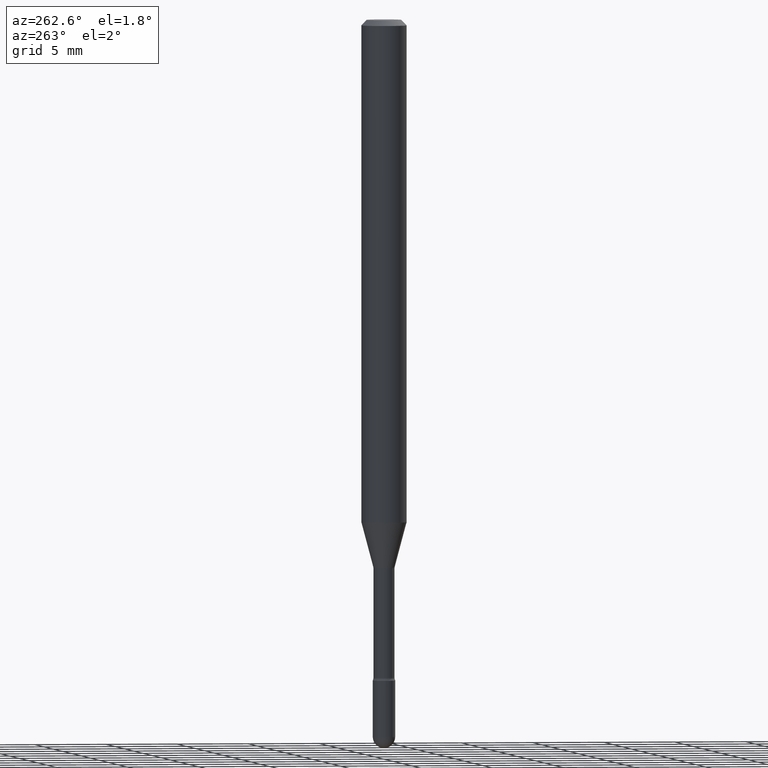
[diagram: clean part render]
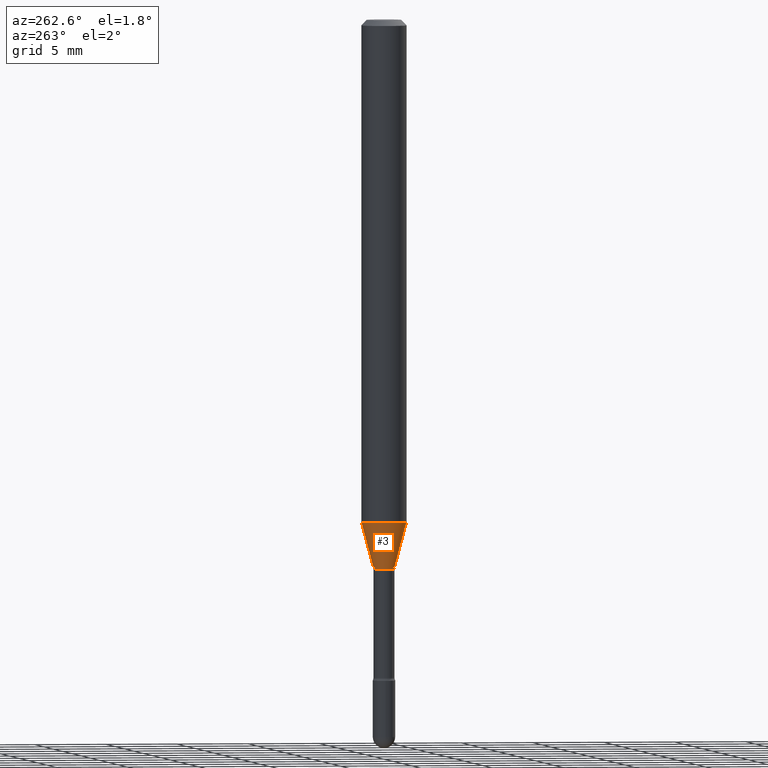
[diagram: same view with one face highlighted and labeled with its STEP entity id]
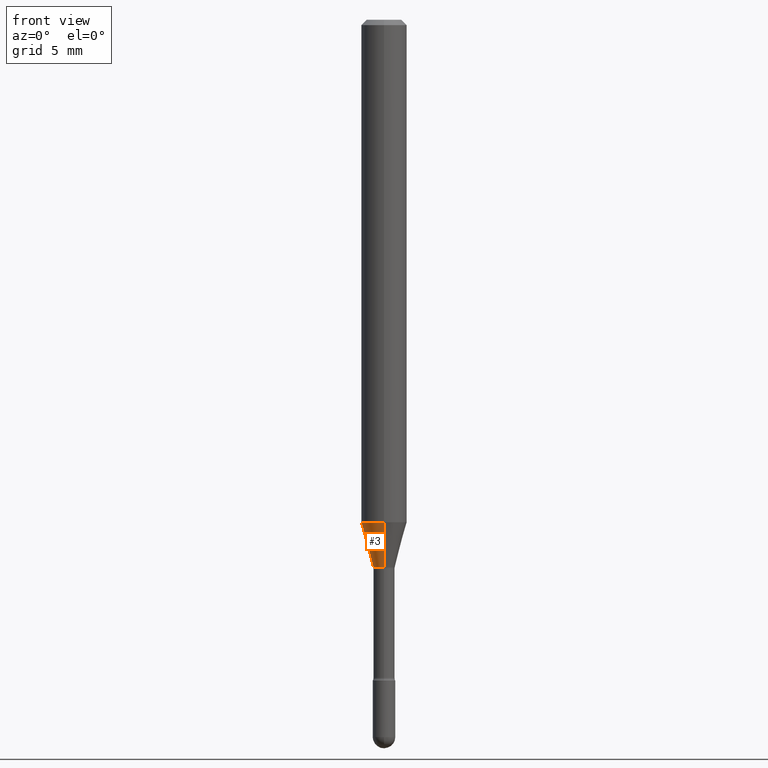
[diagram: same view with one face highlighted and labeled with its STEP entity id]
A machine part, auxiliary view. The second image highlights one B-rep face of the part: STEP entity #3.
A second angle (front view) of the same face is appended — the face is thin or edge-on in the first view.
In plain terms, the highlighted conical surface has half-angle 15 deg.
Its self-contained STEP definition (entity closure, byte-faithful):
#3 = ADVANCED_FACE ( 'NONE', ( #396 ), #367, .T. ) ;
#9 = CARTESIAN_POINT ( 'NONE',  ( 3.673298962196712735E-29, -5.244558577962036648E-15, -1.502092501787273271 ) ) ;
#25 = CARTESIAN_POINT ( 'NONE',  ( 2.107548809652055165E-16, 0.02966111260565873833, -1.502092501787273271 ) ) ;
#74 = LINE ( 'NONE', #196, #279 ) ;
#77 = AXIS2_PLACEMENT_3D ( 'NONE', #454, #116, #505 ) ;
#85 = EDGE_CURVE ( 'NONE', #366, #150, #253, .T. ) ;
#116 = DIRECTION ( 'NONE',  ( -2.445454562768948999E-29, 3.491501736225811078E-15, 1.000000000000000000 ) ) ;
#118 = DIRECTION ( 'NONE',  ( 1.839019923739598738E-15, 0.2588190451025247363, 0.9659258262890673130 ) ) ;
#137 = EDGE_LOOP ( 'NONE', ( #276, #407, #194, #186 ) ) ;
#150 = VERTEX_POINT ( 'NONE', #237 ) ;
#156 = EDGE_CURVE ( 'NONE', #397, #366, #413, .T. ) ;
#158 = CIRCLE ( 'NONE', #77, 0.02966111260566398414 ) ;
#161 = AXIS2_PLACEMENT_3D ( 'NONE', #9, #350, #529 ) ;
#164 = CARTESIAN_POINT ( 'NONE',  ( 3.373592863864740573E-29, -4.816652707775393500E-15, -1.379536105567578330 ) ) ;
#168 = EDGE_CURVE ( 'NONE', #453, #150, #74, .T. ) ;
#174 = CARTESIAN_POINT ( 'NONE',  ( 4.440892098500961428E-16, 0.06249999999999514971, -1.379536105567578552 ) ) ;
#180 = CARTESIAN_POINT ( 'NONE',  ( -2.071224423039644956E-16, -0.02966111260566922994, -1.502092501787273271 ) ) ;
#186 = ORIENTED_EDGE ( 'NONE', *, *, #85, .F. ) ;
#194 = ORIENTED_EDGE ( 'NONE', *, *, #168, .T. ) ;
#196 = CARTESIAN_POINT ( 'NONE',  ( -2.071224423039644956E-16, -0.02966111260566922994, -1.502092501787273271 ) ) ;
#237 = CARTESIAN_POINT ( 'NONE',  ( -4.364351673553580935E-16, -0.06250000000000484335, -1.379536105567578108 ) ) ;
#253 = CIRCLE ( 'NONE', #433, 0.06250000000000000000 ) ;
#276 = ORIENTED_EDGE ( 'NONE', *, *, #156, .F. ) ;
#279 = VECTOR ( 'NONE', #364, 39.37007874015748854 ) ;
#350 = DIRECTION ( 'NONE',  ( -2.445454562768948999E-29, 3.491501736225811078E-15, 1.000000000000000000 ) ) ;
#364 = DIRECTION ( 'NONE',  ( -1.807323732225328562E-15, -0.2588190451025179639, 0.9659258262890690894 ) ) ;
#366 = VERTEX_POINT ( 'NONE', #174 ) ;
#367 = CONICAL_SURFACE ( 'NONE', #161, 0.02966111260566398414, 0.2617993877991500740 ) ;
#396 = FACE_OUTER_BOUND ( 'NONE', #137, .T. ) ;
#397 = VERTEX_POINT ( 'NONE', #476 ) ;
#407 = ORIENTED_EDGE ( 'NONE', *, *, #510, .T. ) ;
#413 = LINE ( 'NONE', #25, #551 ) ;
#416 = DIRECTION ( 'NONE',  ( -2.445454562768948999E-29, 3.491501736225811078E-15, 1.000000000000000000 ) ) ;
#433 = AXIS2_PLACEMENT_3D ( 'NONE', #164, #416, #548 ) ;
#453 = VERTEX_POINT ( 'NONE', #180 ) ;
#454 = CARTESIAN_POINT ( 'NONE',  ( 3.673298962196712735E-29, -5.244558577962036648E-15, -1.502092501787273271 ) ) ;
#476 = CARTESIAN_POINT ( 'NONE',  ( 3.274220454076509529E-16, 0.02966111260565873833, -1.502092501787273271 ) ) ;
#505 = DIRECTION ( 'NONE',  ( -6.982962677686265922E-15, -1.000000000000000000, 0.000000000000000000 ) ) ;
#510 = EDGE_CURVE ( 'NONE', #397, #453, #158, .T. ) ;
#529 = DIRECTION ( 'NONE',  ( -6.982962677686265922E-15, -1.000000000000000000, 0.000000000000000000 ) ) ;
#548 = DIRECTION ( 'NONE',  ( -6.982962677686265922E-15, -1.000000000000000000, 4.370956789862821150E-15 ) ) ;
#551 = VECTOR ( 'NONE', #118, 39.37007874015748854 ) ;